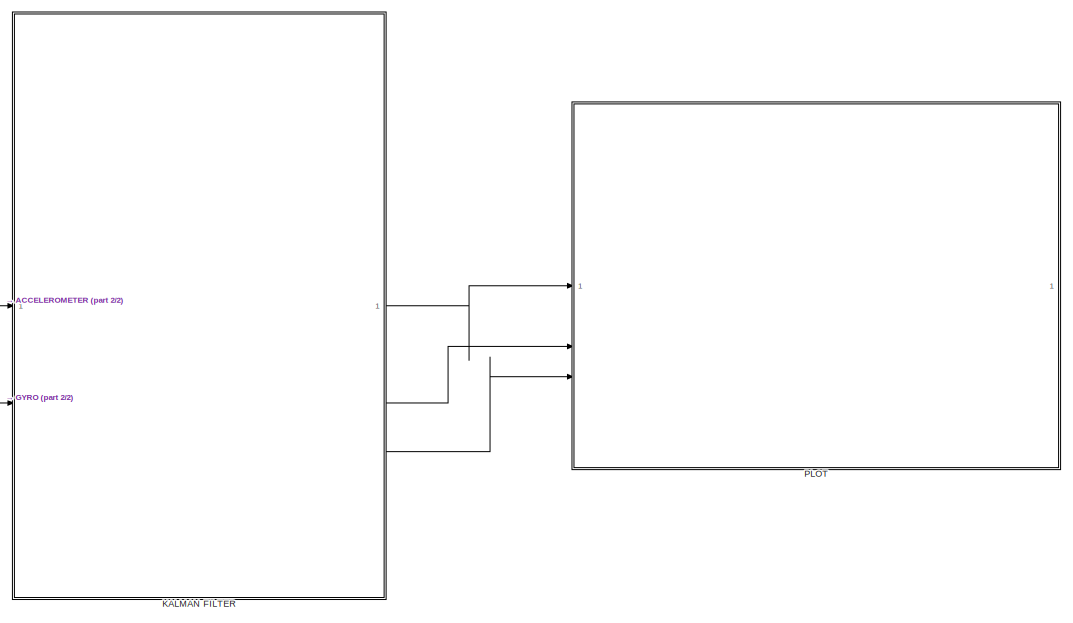
[diagram: root canvas - part 1/2, right side, full height]
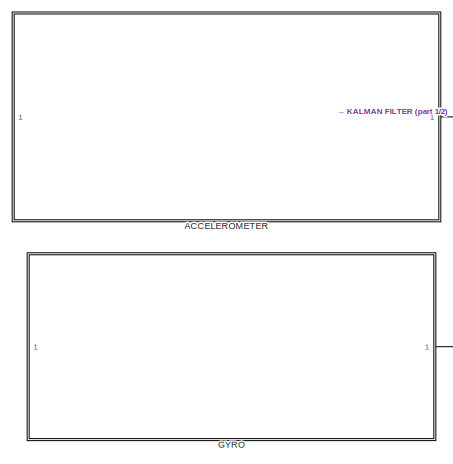
[diagram: root canvas - part 2/2, middle left region]
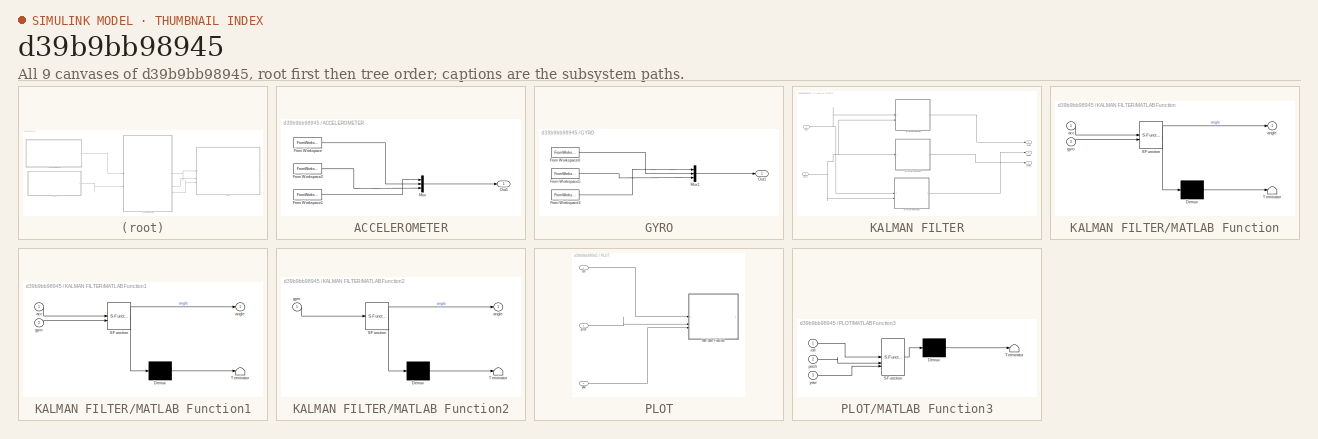
[diagram: thumbnail index - all 9 canvases of the model, root first then tree order]
MODEL slx_d39b9bb98945
KIND model
CONFIG AbsTol = auto
CONFIG EnableMultiTasking = off
CONFIG FixedStep = 0.01
CONFIG MaxStep = auto
CONFIG MinStep = auto
CONFIG RelTol = 1e-3
CONFIG SampleTimeConstraint = Unconstrained
CONFIG SolverName = FixedStepAuto
CONFIG StartTime = 0.0
CONFIG StopTime = 35
BLOCK [SubSystem] ACCELEROMETER
BLOCK [FromWorkspace] ACCELEROMETER/From Workspace
  VariableName = accY_ts
BLOCK [FromWorkspace] ACCELEROMETER/From Workspace1
  VariableName = accX_ts
BLOCK [FromWorkspace] ACCELEROMETER/From Workspace2
  VariableName = accZ_ts
BLOCK [Mux] ACCELEROMETER/Mux
  DisplayOption = bar
  Inputs = 3
BLOCK [Outport] ACCELEROMETER/Out1
BLOCK [SubSystem] GYRO
BLOCK [FromWorkspace] GYRO/From Workspace3
  VariableName = gyroX_ts
BLOCK [FromWorkspace] GYRO/From Workspace4
  VariableName = gyroY_ts
BLOCK [FromWorkspace] GYRO/From Workspace5
  VariableName = gyroZ_ts
BLOCK [Mux] GYRO/Mux1
  DisplayOption = bar
  Inputs = 3
BLOCK [Outport] GYRO/Out1
BLOCK [SubSystem] KALMAN FILTER
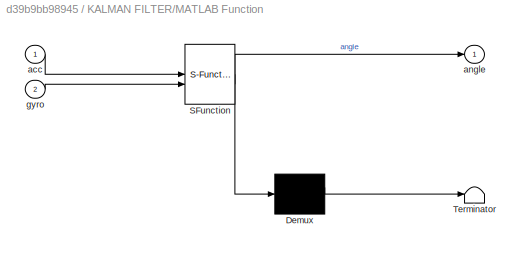
BLOCK [SubSystem] KALMAN FILTER/MATLAB Function
  ErrorFcn = Stateflow.Translate.translate
  PermitHierarchicalResolution = ExplicitOnly
  SFBlockType = MATLAB Function
  TreatAsAtomicUnit = on
BLOCK [Demux] KALMAN FILTER/MATLAB Function/ Demux 
  Outputs = 1
BLOCK [S-Function] KALMAN FILTER/MATLAB Function/ SFunction 
  EnableBusSupport = on
  FunctionName = sf_sfun
  PortCounts = [2 2]
  SFcnIsStateOwnerBlock = off
  SFunctionDeploymentMode = off
  Tag = Stateflow S-Function 2
BLOCK [Terminator] KALMAN FILTER/MATLAB Function/ Terminator 
BLOCK [Inport] KALMAN FILTER/MATLAB Function/acc
BLOCK [Outport] KALMAN FILTER/MATLAB Function/angle
BLOCK [Inport] KALMAN FILTER/MATLAB Function/gyro
  Port = 2
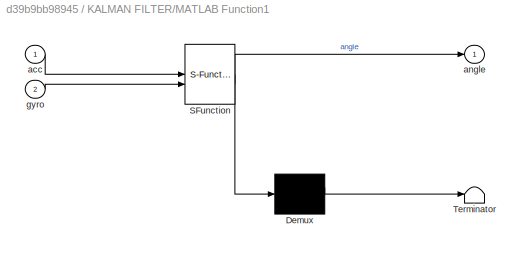
BLOCK [SubSystem] KALMAN FILTER/MATLAB Function1
  ErrorFcn = Stateflow.Translate.translate
  PermitHierarchicalResolution = ExplicitOnly
  SFBlockType = MATLAB Function
  TreatAsAtomicUnit = on
BLOCK [Demux] KALMAN FILTER/MATLAB Function1/ Demux 
  Outputs = 1
BLOCK [S-Function] KALMAN FILTER/MATLAB Function1/ SFunction 
  EnableBusSupport = on
  FunctionName = sf_sfun
  PortCounts = [2 2]
  SFcnIsStateOwnerBlock = off
  SFunctionDeploymentMode = off
  Tag = Stateflow S-Function 1
BLOCK [Terminator] KALMAN FILTER/MATLAB Function1/ Terminator 
BLOCK [Inport] KALMAN FILTER/MATLAB Function1/acc
BLOCK [Outport] KALMAN FILTER/MATLAB Function1/angle
BLOCK [Inport] KALMAN FILTER/MATLAB Function1/gyro
  Port = 2
BLOCK [SubSystem] KALMAN FILTER/MATLAB Function2
  ErrorFcn = Stateflow.Translate.translate
  PermitHierarchicalResolution = ExplicitOnly
  SFBlockType = MATLAB Function
  TreatAsAtomicUnit = on
BLOCK [Demux] KALMAN FILTER/MATLAB Function2/ Demux 
  Outputs = 1
BLOCK [S-Function] KALMAN FILTER/MATLAB Function2/ SFunction 
  EnableBusSupport = on
  FunctionName = sf_sfun
  PortCounts = [1 2]
  SFcnIsStateOwnerBlock = off
  SFunctionDeploymentMode = off
  Tag = Stateflow S-Function 3
BLOCK [Terminator] KALMAN FILTER/MATLAB Function2/ Terminator 
BLOCK [Outport] KALMAN FILTER/MATLAB Function2/angle
BLOCK [Inport] KALMAN FILTER/MATLAB Function2/gyro
BLOCK [Inport] KALMAN FILTER/acc
BLOCK [Outport] KALMAN FILTER/angle
BLOCK [Outport] KALMAN FILTER/angle1
  Port = 2
BLOCK [Outport] KALMAN FILTER/angle2
  Port = 3
BLOCK [Inport] KALMAN FILTER/gyro
  Port = 2
BLOCK [SubSystem] PLOT
BLOCK [SubSystem] PLOT/MATLAB Function3
  ErrorFcn = Stateflow.Translate.translate
  PermitHierarchicalResolution = ExplicitOnly
  SFBlockType = MATLAB Function
  TreatAsAtomicUnit = on
BLOCK [Demux] PLOT/MATLAB Function3/ Demux 
  Outputs = 1
BLOCK [S-Function] PLOT/MATLAB Function3/ SFunction 
  EnableBusSupport = on
  FunctionName = sf_sfun
  PortCounts = [3 1]
  SFcnIsStateOwnerBlock = off
  SFunctionDeploymentMode = off
  Tag = Stateflow S-Function 4
BLOCK [Terminator] PLOT/MATLAB Function3/ Terminator 
BLOCK [Inport] PLOT/MATLAB Function3/pitch
  Port = 2
BLOCK [Inport] PLOT/MATLAB Function3/roll
BLOCK [Inport] PLOT/MATLAB Function3/yaw
  Port = 3
BLOCK [Inport] PLOT/pitch
  Port = 2
BLOCK [Inport] PLOT/roll
BLOCK [Inport] PLOT/yaw
  Port = 3
LINE ACCELEROMETER/From Workspace1:1 -> ACCELEROMETER/Mux:1
LINE ACCELEROMETER/From Workspace2:1 -> ACCELEROMETER/Mux:3
LINE ACCELEROMETER/From Workspace:1 -> ACCELEROMETER/Mux:2
LINE ACCELEROMETER/Mux:1 -> ACCELEROMETER/Out1:1
LINE ACCELEROMETER:1 -> KALMAN FILTER:1
LINE GYRO/From Workspace3:1 -> GYRO/Mux1:1
LINE GYRO/From Workspace4:1 -> GYRO/Mux1:2
LINE GYRO/From Workspace5:1 -> GYRO/Mux1:3
LINE GYRO/Mux1:1 -> GYRO/Out1:1
LINE GYRO:1 -> KALMAN FILTER:2
LINE KALMAN FILTER/MATLAB Function1:1 -> KALMAN FILTER/angle1:1
LINE KALMAN FILTER/MATLAB Function2:1 -> KALMAN FILTER/angle2:1
LINE KALMAN FILTER/MATLAB Function:1 -> KALMAN FILTER/angle:1
NET KALMAN FILTER/acc:1 -> KALMAN FILTER/MATLAB Function1:1, KALMAN FILTER/MATLAB Function:1
NET KALMAN FILTER/gyro:1 -> KALMAN FILTER/MATLAB Function1:2, KALMAN FILTER/MATLAB Function2:1, KALMAN FILTER/MATLAB Function:2
LINE KALMAN FILTER:1 -> PLOT:1
LINE KALMAN FILTER:2 -> PLOT:2
LINE KALMAN FILTER:3 -> PLOT:3
LINE PLOT/pitch:1 -> PLOT/MATLAB Function3:2
LINE PLOT/roll:1 -> PLOT/MATLAB Function3:1
LINE PLOT/yaw:1 -> PLOT/MATLAB Function3:3
note: NET lines group one-source signal fan-out (src -> all destinations, sorted); 1:1 wires keep LINE
CHART KALMAN FILTER/MATLAB Function1 states=1 transitions=1
  STATE_LABEL 'eML_blk_kernel()'
  STATE_LABEL 'SCRIPT:\nfunction angle = kalman_pitch(acc, gyro)\npersistent P angle_est\nQ = 0.01; R = 0.1; dt = 0.01;\nif isempty(P), P = 1; angle_est = 0; end\n\nacc_angle = atan2(-acc(1), sqrt(acc(2)^2 + acc(3)^2));\nangle_est = angle_est + gyro(2) * dt;\nP = P + Q;\n\nK = P / (P + R);\nangle_est = angle_est + K * (acc_angle - angle_est);\nP = (1 - K) * P;\n\nangle = angle_est;'
CHART KALMAN FILTER/MATLAB Function states=1 transitions=1
  STATE_LABEL 'eML_blk_kernel()'
  STATE_LABEL 'SCRIPT:\nfunction angle = kalman_roll(acc, gyro)\npersistent P angle_est\nQ = 0.01; R = 0.1; dt = 0.01;\nif isempty(P), P = 1; angle_est = 0; end\n\nacc_angle = atan2(acc(2), acc(3));         % roll from acc\nangle_est = angle_est + gyro(1) * dt;      % integrate gyro x\nP = P + Q;\n\nK = P / (P + R);                            % Kalman gain\nangle_est = angle_est + K * (acc_angle - angle_est);\nP = (1 - K) *...<+23ch>'
CHART KALMAN FILTER/MATLAB Function2 states=1 transitions=1
  STATE_LABEL 'eML_blk_kernel()'
  STATE_LABEL 'SCRIPT:\nfunction angle = kalman_yaw(gyro)\npersistent angle_est\ndt = 0.01;\nif isempty(angle_est), angle_est = 0; end\n\nangle_est = angle_est + gyro(3) * dt;\nangle = angle_est;'
CHART PLOT/MATLAB Function3 states=1 transitions=1
  STATE_LABEL 'eML_blk_kernel()'
  STATE_LABEL "SCRIPT:\nfunction draw(roll, pitch, yaw)\npersistent h\nif isempty(h)\n    h = figure('Name', '3D Cube'); axis equal; grid on;\n    xlabel('X'); ylabel('Y'); zlabel('Z'); view(3);\nend\nclf(h); hold on\n\nRx = [1 0 0; 0 cos(roll) -sin(roll); 0 sin(roll) cos(roll)];\nRy = [cos(pitch) 0 sin(pitch); 0 1 0; -sin(pitch) 0 cos(pitch)];\nRz = [cos(yaw) -sin(yaw) 0; sin(yaw) cos(yaw) 0; 0 0 1];\n\nR = Rz * Ry * Rx;\n\nv...<+646ch>"
CHART  states=0 transitions=0
CHART  states=0 transitions=0
CHART  states=0 transitions=0
CHART  states=0 transitions=0
